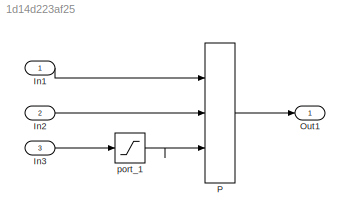
MODEL slx_1d14d223af25
KIND model
CONFIG AbsTol = auto
CONFIG EnableMultiTasking = off
CONFIG FixedStep = auto
CONFIG MaxStep = auto
CONFIG MinStep = auto
CONFIG RelTol = 1e-3
CONFIG SampleTimeConstraint = Unconstrained
CONFIG Solver = FixedStepDiscrete
CONFIG SolverName = FixedStepDiscrete
CONFIG StartTime = 0.0
CONFIG StopTime = 10.0
BLOCK [Inport] In1
  IconDisplay = Port number
  OutDataTypeStr = int16
  PortDimensions = [3 3]
BLOCK [Inport] In2
  IconDisplay = Port number
  OutDataTypeStr = int16
  Port = 2
  PortDimensions = [2 3]
BLOCK [Inport] In3
  IconDisplay = Port number
  OutMax = 1
  OutMin = 0
  Port = 3
BLOCK [Outport] Out1
  IconDisplay = Port number
BLOCK [Assignment] P
  DiagnosticForDimensions = Warning
  IndexMode = Zero-based
  IndexOptions = Starting index (port),Assign all
  Indices = [],[]
  NumberOfDimensions = 2
  OutputSizes = ,
  Ports = [3, 1]
BLOCK [Saturate] port_1
  InputPortMap = u0
  LowerLimit = 0
  Ports = [1, 1]
  UpperLimit = 1
LINE In1:1 -> P:1
LINE In2:1 -> P:2
LINE In3:1 -> port_1:1
LINE P:1 -> Out1:1
LINE port_1:1 -> P:3
